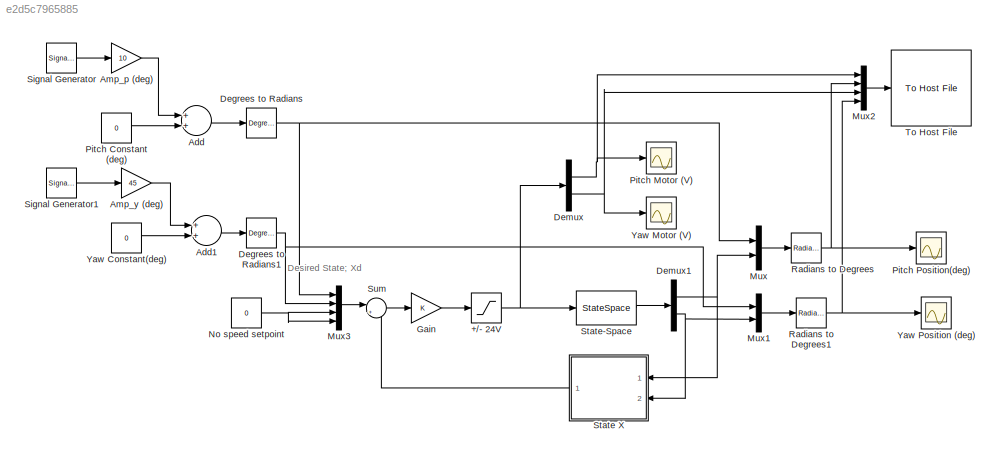
MODEL slx_e2d5c7965885
KIND model
BLOCK [Saturate] +//- 24V
  InputPortMap = u0
  LowerLimit = -24
  Ports = [1, 1]
  UpperLimit = 24
BLOCK [Sum] Add
  InputSameDT = off
  OutDataTypeStr = Inherit: Inherit via internal rule
  Ports = [2, 1]
  SaturateOnIntegerOverflow = off
BLOCK [Sum] Add1
  InputSameDT = off
  OutDataTypeStr = Inherit: Inherit via internal rule
  Ports = [2, 1]
  SaturateOnIntegerOverflow = off
BLOCK [Gain] Amp_p (deg)
  Gain = 10
  OutDataTypeStr = Inherit: Inherit via internal rule
  ParamDataTypeStr = Inherit: Inherit via internal rule
  SaturateOnIntegerOverflow = off
BLOCK [Gain] Amp_y (deg)
  Gain = 45
  OutDataTypeStr = Inherit: Inherit via internal rule
  ParamDataTypeStr = Inherit: Inherit via internal rule
  SaturateOnIntegerOverflow = off
BLOCK [Reference] Degrees to Radians  REF=simulink_extras/Transformations/Degrees to
Radians
  Ports = [1, 1]
  SourceBlock = simulink_extras/Transformations/Degrees to\nRadians
  SourceType = DegreesToRadians
BLOCK [Reference] Degrees to Radians1  REF=simulink_extras/Transformations/Degrees to
Radians
  Ports = [1, 1]
  SourceBlock = simulink_extras/Transformations/Degrees to\nRadians
  SourceType = DegreesToRadians
BLOCK [Demux] Demux
  DisplayOption = bar
  Outputs = 2
  Ports = [1, 2]
BLOCK [Demux] Demux1
  DisplayOption = bar
  Outputs = 2
  Ports = [1, 2]
BLOCK [Gain] Gain
  Gain = K
  Multiplication = Matrix(K*u)
  OutDataTypeStr = Inherit: Inherit via internal rule
  ParamDataTypeStr = Inherit: Inherit via internal rule
  SaturateOnIntegerOverflow = off
BLOCK [Mux] Mux
  DisplayOption = bar
  Inputs = 2
  Ports = [2, 1]
BLOCK [Mux] Mux1
  DisplayOption = bar
  Inputs = 2
  Ports = [2, 1]
BLOCK [Mux] Mux2
  DisplayOption = bar
  Ports = [4, 1]
BLOCK [Mux] Mux3
  DisplayOption = bar
  Ports = [4, 1]
BLOCK [Constant] No speed setpoint
  Value = 0
BLOCK [Constant] Pitch Constant (deg)
  Value = 0
BLOCK [Scope] Pitch Motor (V)
  Floating = off
  MaxDataPoints = 15000
  NumInputPorts = 1
  Ports = [1]
  SaveName = ScopeData2
  ShowLegends = off
  TimeRange = 30
  YMax = 25
  YMin = -25
BLOCK [Scope] Pitch Position(deg)
  Floating = off
  MaxDataPoints = 15000
  NumInputPorts = 1
  Ports = [1]
  SaveName = ScopeData3
  ShowLegends = off
  TimeRange = 30
  YMax = 20
  YMin = -20
BLOCK [Reference] Radians to Degrees  REF=simulink_extras/Transformations/Radians
to Degrees
  Ports = [1, 1]
  SourceBlock = simulink_extras/Transformations/Radians\nto Degrees
  SourceType = RadiansToDegrees
BLOCK [Reference] Radians to Degrees1  REF=simulink_extras/Transformations/Radians
to Degrees
  Ports = [1, 1]
  SourceBlock = simulink_extras/Transformations/Radians\nto Degrees
  SourceType = RadiansToDegrees
BLOCK [SignalGenerator] Signal Generator
  Frequency = 0.1
  Ports = [0, 1]
  WaveForm = square
BLOCK [SignalGenerator] Signal Generator1
  Frequency = 0.04
  Ports = [0, 1]
  WaveForm = square
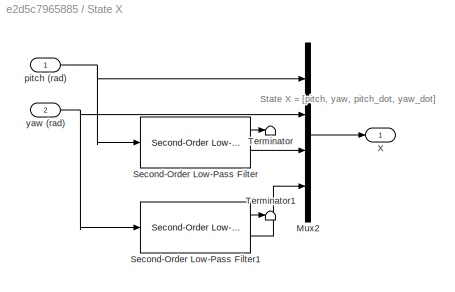
BLOCK [SubSystem] State X
  Ports = [2, 1]
  RequestExecContextInheritance = off
BLOCK [Mux] State X/Mux2
  DisplayOption = bar
  Ports = [4, 1]
BLOCK [Reference] State X/Second-Order Low-Pass Filter  REF=quarc_library/Continuous/Second-Order
Low-Pass Filter
  Ports = [1, 2]
  SourceBlock = quarc_library/Continuous/Second-Order\nLow-Pass Filter
  SourceType = Second-Order Low-Pass Filter
  input_init = 0
  input_width = 50
  input_zeta = 0.8
  params_source = Internal (dialog parameters)
BLOCK [Reference] State X/Second-Order Low-Pass Filter1  REF=quarc_library/Continuous/Second-Order
Low-Pass Filter
  Ports = [1, 2]
  SourceBlock = quarc_library/Continuous/Second-Order\nLow-Pass Filter
  SourceType = Second-Order Low-Pass Filter
  input_init = 0
  input_width = 50
  input_zeta = 0.8
  params_source = Internal (dialog parameters)
BLOCK [Terminator] State X/Terminator
BLOCK [Terminator] State X/Terminator1
BLOCK [Outport] State X/X
  IconDisplay = Port number
BLOCK [Inport] State X/pitch (rad)
  IconDisplay = Port number
BLOCK [Inport] State X/yaw (rad)
  IconDisplay = Port number
  Port = 2
BLOCK [StateSpace] State-Space
  A = A
  B = B
  C = C
  D = D
  Ports = [1, 1]
  X0 = 0
BLOCK [Sum] Sum
  IconShape = round
  InputSameDT = off
  Inputs = |+-
  OutDataTypeStr = Inherit: Inherit via internal rule
  Ports = [2, 1]
  SaturateOnIntegerOverflow = off
BLOCK [Reference] To Host File  REF=quarc_library/Sinks/To Host/To Host File
  AttributesFormatString = %<final_file_name>
  Ports = [1]
  SourceBlock = quarc_library/Sinks/To Host/To Host File
  SourceType = To Host File
  append = off
  decimation = 1
  file_format = MAT-file v.4
  file_name = aero_lqr_rsp_sim.mat
  final_file_name = aero_lqr_rsp_sim.mat
  options = No header or footer
  sample_time = -1
  variable_name = lqr_rsp_sim
BLOCK [Constant] Yaw Constant(deg)
  Value = 0
BLOCK [Scope] Yaw Motor (V)
  Floating = off
  MaxDataPoints = 15000
  NumInputPorts = 1
  Ports = [1]
  SaveName = ScopeData5
  ShowLegends = off
  TimeRange = 30
  YMax = 25
  YMin = -25
BLOCK [Scope] Yaw Position (deg)
  Floating = off
  MaxDataPoints = 15000
  NumInputPorts = 1
  Ports = [1]
  SaveName = ScopeData4
  ShowLegends = off
  TimeRange = 30
  YMax = 100
  YMin = -100
ANNOTATION (root): Desired State; Xd
ANNOTATION State X: State X = [pitch, yaw, pitch_dot, yaw_dot]
NET +//- 24V:1 -> Demux:1, State-Space:1
LINE Add1:1 -> Degrees to Radians1:1
LINE Add:1 -> Degrees to Radians:1
LINE Amp_p (deg):1 -> Add:1
LINE Amp_y (deg):1 -> Add1:1
NET Degrees to Radians1:1 -> Mux1:1, Mux3:2
NET Degrees to Radians:1 -> Mux3:1, Mux:1
NET Demux1:1 -> Mux:2, State X:1
NET Demux1:2 -> Mux1:2, State X:2
NET Demux:1 -> Mux2:1, Pitch Motor (V):1
NET Demux:2 -> Mux2:3, Yaw Motor (V):1
LINE Gain:1 -> +//- 24V:1
LINE Mux1:1 -> Radians to Degrees1:1
LINE Mux2:1 -> To Host File:1
LINE Mux3:1 -> Sum:1
LINE Mux:1 -> Radians to Degrees:1
NET No speed setpoint:1 -> Mux3:3, Mux3:4
LINE Pitch Constant (deg):1 -> Add:2
NET Radians to Degrees1:1 -> Mux2:4, Yaw Position (deg):1
NET Radians to Degrees:1 -> Mux2:2, Pitch Position(deg):1
LINE Signal Generator1:1 -> Amp_y (deg):1
LINE Signal Generator:1 -> Amp_p (deg):1
LINE State X/Mux2:1 -> State X/X:1
LINE State X/Second-Order Low-Pass Filter1:1 -> State X/Terminator1:1
LINE State X/Second-Order Low-Pass Filter1:2 -> State X/Mux2:4
LINE State X/Second-Order Low-Pass Filter:1 -> State X/Terminator:1
LINE State X/Second-Order Low-Pass Filter:2 -> State X/Mux2:3
NET State X/pitch (rad):1 -> State X/Mux2:1, State X/Second-Order Low-Pass Filter:1
NET State X/yaw (rad):1 -> State X/Mux2:2, State X/Second-Order Low-Pass Filter1:1
LINE State X:1 -> Sum:2
LINE State-Space:1 -> Demux1:1
LINE Sum:1 -> Gain:1
LINE Yaw Constant(deg):1 -> Add1:2
note: NET lines group one-source signal fan-out (src -> all destinations, sorted); 1:1 wires keep LINE
